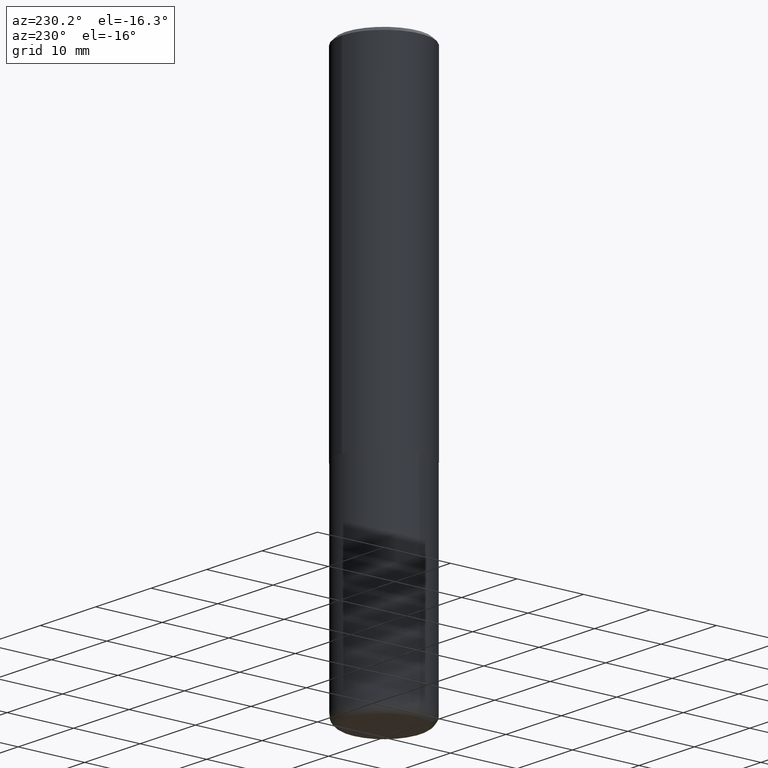
[diagram: clean part render]
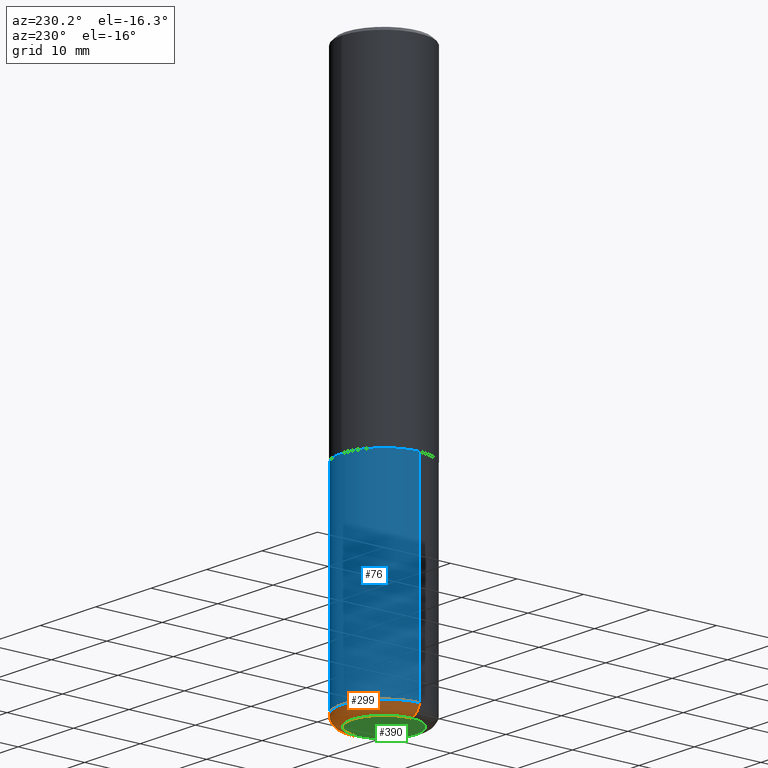
[diagram: same view with three faces highlighted in distinct colors, each labeled with its STEP entity id]
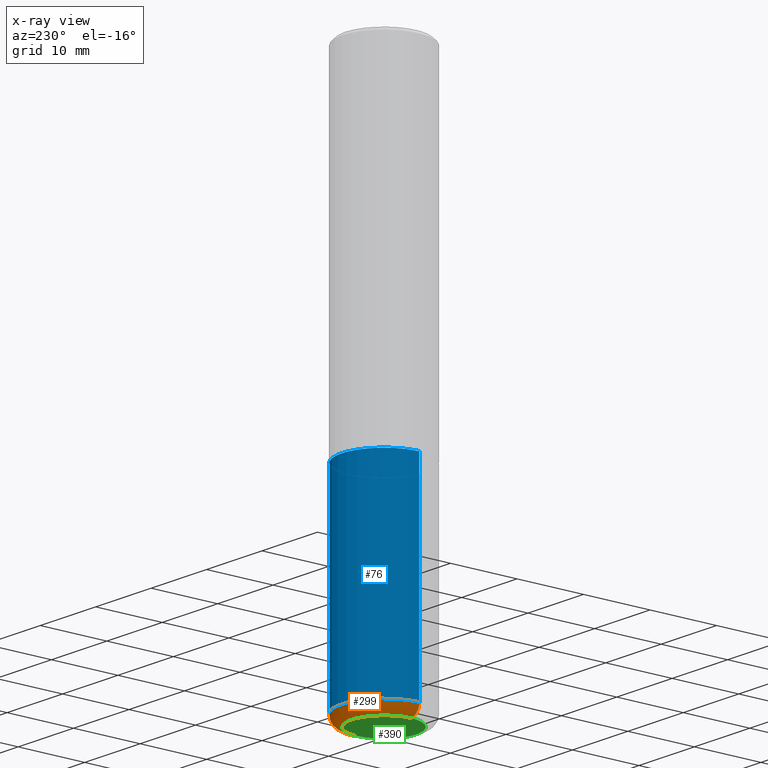
[diagram: x-ray of the same camera — body ghosted, the three highlighted faces saturated]
A machine part, auxiliary view with three faces highlighted in distinct colors.
The next image is the same camera in x-ray (body ghosted, the three faces saturated) — at least one of them is partly hidden behind the body in this view.
Their STEP definitions:

[orange] entity #299 — the highlighted toroidal blend (fillet) surface has major radius 4.826 mm and minor (blend) radius 1.524 mm.
#27 = DIRECTION ( 'NONE',  ( 1.000000000000000000, -6.982962677686261977E-15, 0.000000000000000000 ) ) ;
#34 = CIRCLE ( 'NONE', #302, 0.05999999999999994227 ) ;
#43 = CARTESIAN_POINT ( 'NONE',  ( 0.1899999999999999745, -1.246458837967002615E-14, -3.189999999999999947 ) ) ;
#52 = DIRECTION ( 'NONE',  ( 7.105427357601001859E-15, 1.000000000000000000, -3.491481338843145583E-15 ) ) ;
#56 = ORIENTED_EDGE ( 'NONE', *, *, #305, .T. ) ;
#58 = TOROIDAL_SURFACE ( 'NONE', #322, 0.1899999999999999745, 0.05999999999999995615 ) ;
#59 = CARTESIAN_POINT ( 'NONE',  ( -0.1899999999999999745, -9.787794272965444556E-15, -3.189999999999999947 ) ) ;
#63 = EDGE_LOOP ( 'NONE', ( #56, #75, #352, #356 ) ) ;
#70 = EDGE_CURVE ( 'NONE', #324, #159, #248, .T. ) ;
#75 = ORIENTED_EDGE ( 'NONE', *, *, #246, .T. ) ;
#79 = CARTESIAN_POINT ( 'NONE',  ( 7.801045491730585789E-29, -1.113782547090963453E-14, -3.189999999999999947 ) ) ;
#87 = DIRECTION ( 'NONE',  ( 1.000000000000000000, -6.982962677686265133E-15, 4.883557194083112340E-29 ) ) ;
#108 = VERTEX_POINT ( 'NONE', #334 ) ;
#120 = DIRECTION ( 'NONE',  ( -2.445468806185136597E-29, 3.491481338843145583E-15, 1.000000000000000000 ) ) ;
#124 = DIRECTION ( 'NONE',  ( -1.000000000000000000, 7.105427357600997914E-15, 0.000000000000000000 ) ) ;
#144 = DIRECTION ( 'NONE',  ( 1.000000000000000000, -6.982962677686270655E-15, 0.000000000000000000 ) ) ;
#148 = FACE_OUTER_BOUND ( 'NONE', #63, .T. ) ;
#157 = AXIS2_PLACEMENT_3D ( 'NONE', #79, #172, #144 ) ;
#159 = VERTEX_POINT ( 'NONE', #381 ) ;
#172 = DIRECTION ( 'NONE',  ( -2.445468806185136597E-29, 3.491481338843145583E-15, 1.000000000000000000 ) ) ;
#193 = DIRECTION ( 'NONE',  ( -6.982962677686266711E-15, -1.000000000000000000, 3.491481338843145583E-15 ) ) ;
#222 = AXIS2_PLACEMENT_3D ( 'NONE', #247, #385, #27 ) ;
#246 = EDGE_CURVE ( 'NONE', #108, #159, #290, .T. ) ;
#247 = CARTESIAN_POINT ( 'NONE',  ( 7.947773620101693940E-29, -1.134731435124022443E-14, -3.250000000000000000 ) ) ;
#248 = CIRCLE ( 'NONE', #157, 0.2500000000000000000 ) ;
#254 = VERTEX_POINT ( 'NONE', #317 ) ;
#279 = CARTESIAN_POINT ( 'NONE',  ( 7.801045491730585789E-29, -1.113782547090963453E-14, -3.189999999999999947 ) ) ;
#290 = CIRCLE ( 'NONE', #316, 0.05999999999999994227 ) ;
#299 = ADVANCED_FACE ( 'NONE', ( #148 ), #58, .T. ) ;
#301 = DIRECTION ( 'NONE',  ( 1.000000000000000000, -6.982962677686274599E-15, 0.000000000000000000 ) ) ;
#302 = AXIS2_PLACEMENT_3D ( 'NONE', #43, #193, #301 ) ;
#305 = EDGE_CURVE ( 'NONE', #254, #108, #391, .T. ) ;
#316 = AXIS2_PLACEMENT_3D ( 'NONE', #59, #52, #124 ) ;
#317 = CARTESIAN_POINT ( 'NONE',  ( 0.1899999999999999745, -1.267407726000061289E-14, -3.250000000000000000 ) ) ;
#322 = AXIS2_PLACEMENT_3D ( 'NONE', #279, #120, #87 ) ;
#324 = VERTEX_POINT ( 'NONE', #344 ) ;
#334 = CARTESIAN_POINT ( 'NONE',  ( -0.1899999999999999745, -9.679375892402709259E-15, -3.250000000000000000 ) ) ;
#344 = CARTESIAN_POINT ( 'NONE',  ( 0.2499999999999999722, -1.288356614033120121E-14, -3.189999999999999947 ) ) ;
#352 = ORIENTED_EDGE ( 'NONE', *, *, #70, .F. ) ;
#356 = ORIENTED_EDGE ( 'NONE', *, *, #376, .F. ) ;
#376 = EDGE_CURVE ( 'NONE', #254, #324, #34, .T. ) ;
#381 = CARTESIAN_POINT ( 'NONE',  ( -0.2499999999999999722, -9.361468631509382488E-15, -3.189999999999999947 ) ) ;
#385 = DIRECTION ( 'NONE',  ( -2.445468806185136597E-29, 3.491481338843145583E-15, 1.000000000000000000 ) ) ;
#391 = CIRCLE ( 'NONE', #222, 0.1899999999999999745 ) ;

[blue] entity #76 — the highlighted cylindrical surface (partial cylindrical patch) has radius 6.35 mm, axis along (-0, 0, 1).
#1 = ORIENTED_EDGE ( 'NONE', *, *, #415, .F. ) ;
#8 = ORIENTED_EDGE ( 'NONE', *, *, #64, .T. ) ;
#12 = ORIENTED_EDGE ( 'NONE', *, *, #70, .T. ) ;
#45 = DIRECTION ( 'NONE',  ( -2.445468806185136877E-29, 3.491481338843145188E-15, 1.000000000000000000 ) ) ;
#64 = EDGE_CURVE ( 'NONE', #159, #348, #202, .T. ) ;
#70 = EDGE_CURVE ( 'NONE', #324, #159, #248, .T. ) ;
#76 = ADVANCED_FACE ( 'NONE', ( #277 ), #409, .T. ) ;
#79 = CARTESIAN_POINT ( 'NONE',  ( 7.801045491730585789E-29, -1.113782547090963453E-14, -3.189999999999999947 ) ) ;
#86 = CARTESIAN_POINT ( 'NONE',  ( 0.2500000000000000000, -1.745740669421566678E-15, 1.219044193948983948E-29 ) ) ;
#90 = CARTESIAN_POINT ( 'NONE',  ( 0.2500000000000000000, -8.728703347107857054E-15, -2.000000000000000000 ) ) ;
#109 = CIRCLE ( 'NONE', #295, 0.2500000000000000000 ) ;
#112 = DIRECTION ( 'NONE',  ( -2.445468806185136597E-29, 3.491481338843145583E-15, 1.000000000000000000 ) ) ;
#117 = CARTESIAN_POINT ( 'NONE',  ( 0.000000000000000000, 0.000000000000000000, 0.000000000000000000 ) ) ;
#140 = VECTOR ( 'NONE', #143, 39.37007874015748143 ) ;
#143 = DIRECTION ( 'NONE',  ( -2.445468806185136877E-29, 3.491481338843145188E-15, 1.000000000000000000 ) ) ;
#144 = DIRECTION ( 'NONE',  ( 1.000000000000000000, -6.982962677686270655E-15, 0.000000000000000000 ) ) ;
#149 = EDGE_CURVE ( 'NONE', #324, #330, #273, .T. ) ;
#157 = AXIS2_PLACEMENT_3D ( 'NONE', #79, #172, #144 ) ;
#159 = VERTEX_POINT ( 'NONE', #381 ) ;
#172 = DIRECTION ( 'NONE',  ( -2.445468806185136597E-29, 3.491481338843145583E-15, 1.000000000000000000 ) ) ;
#181 = CARTESIAN_POINT ( 'NONE',  ( -0.2500000000000000000, -7.284037234897712778E-15, -2.000000000000000000 ) ) ;
#202 = LINE ( 'NONE', #333, #256 ) ;
#236 = EDGE_LOOP ( 'NONE', ( #12, #8, #1, #362 ) ) ;
#243 = DIRECTION ( 'NONE',  ( -2.445468806185136597E-29, 3.491481338843145583E-15, 1.000000000000000000 ) ) ;
#248 = CIRCLE ( 'NONE', #157, 0.2500000000000000000 ) ;
#256 = VECTOR ( 'NONE', #45, 39.37007874015748143 ) ;
#273 = LINE ( 'NONE', #86, #140 ) ;
#277 = FACE_OUTER_BOUND ( 'NONE', #236, .T. ) ;
#295 = AXIS2_PLACEMENT_3D ( 'NONE', #400, #112, #413 ) ;
#315 = AXIS2_PLACEMENT_3D ( 'NONE', #117, #243, #380 ) ;
#324 = VERTEX_POINT ( 'NONE', #344 ) ;
#330 = VERTEX_POINT ( 'NONE', #90 ) ;
#333 = CARTESIAN_POINT ( 'NONE',  ( -0.2500000000000000000, 1.776356839400250465E-15, -1.229733772563726445E-29 ) ) ;
#344 = CARTESIAN_POINT ( 'NONE',  ( 0.2499999999999999722, -1.288356614033120121E-14, -3.189999999999999947 ) ) ;
#348 = VERTEX_POINT ( 'NONE', #181 ) ;
#362 = ORIENTED_EDGE ( 'NONE', *, *, #149, .F. ) ;
#380 = DIRECTION ( 'NONE',  ( 1.000000000000000000, -6.982962677686266711E-15, 4.876176775795935793E-29 ) ) ;
#381 = CARTESIAN_POINT ( 'NONE',  ( -0.2499999999999999722, -9.361468631509382488E-15, -3.189999999999999947 ) ) ;
#400 = CARTESIAN_POINT ( 'NONE',  ( 4.890937612370273194E-29, -6.982962677686291165E-15, -2.000000000000000000 ) ) ;
#409 = CYLINDRICAL_SURFACE ( 'NONE', #315, 0.2500000000000000000 ) ;
#413 = DIRECTION ( 'NONE',  ( 1.000000000000000000, -6.982962677686266711E-15, 0.000000000000000000 ) ) ;
#415 = EDGE_CURVE ( 'NONE', #330, #348, #109, .T. ) ;

[green] entity #390 — the highlighted planar face has unit normal (0, -0, -1).
#11 = DIRECTION ( 'NONE',  ( -2.445468806185136597E-29, 3.491481338843145583E-15, 1.000000000000000000 ) ) ;
#18 = PLANE ( 'NONE',  #370 ) ;
#27 = DIRECTION ( 'NONE',  ( 1.000000000000000000, -6.982962677686261977E-15, 0.000000000000000000 ) ) ;
#28 = ORIENTED_EDGE ( 'NONE', *, *, #364, .F. ) ;
#69 = CARTESIAN_POINT ( 'NONE',  ( 7.947773620101693940E-29, -1.134731435124022443E-14, -3.250000000000000000 ) ) ;
#101 = CARTESIAN_POINT ( 'NONE',  ( 7.947773620101693940E-29, -1.134731435124022443E-14, -3.250000000000000000 ) ) ;
#108 = VERTEX_POINT ( 'NONE', #334 ) ;
#150 = EDGE_LOOP ( 'NONE', ( #392, #28 ) ) ;
#212 = AXIS2_PLACEMENT_3D ( 'NONE', #69, #11, #368 ) ;
#222 = AXIS2_PLACEMENT_3D ( 'NONE', #247, #385, #27 ) ;
#230 = DIRECTION ( 'NONE',  ( 2.438088387897960049E-29, -3.491481338843145188E-15, -1.000000000000000000 ) ) ;
#247 = CARTESIAN_POINT ( 'NONE',  ( 7.947773620101693940E-29, -1.134731435124022443E-14, -3.250000000000000000 ) ) ;
#254 = VERTEX_POINT ( 'NONE', #317 ) ;
#262 = FACE_OUTER_BOUND ( 'NONE', #150, .T. ) ;
#305 = EDGE_CURVE ( 'NONE', #254, #108, #391, .T. ) ;
#317 = CARTESIAN_POINT ( 'NONE',  ( 0.1899999999999999745, -1.267407726000061289E-14, -3.250000000000000000 ) ) ;
#325 = DIRECTION ( 'NONE',  ( -1.000000000000000000, 6.982962677686265922E-15, -4.876176775795935793E-29 ) ) ;
#334 = CARTESIAN_POINT ( 'NONE',  ( -0.1899999999999999745, -9.679375892402709259E-15, -3.250000000000000000 ) ) ;
#364 = EDGE_CURVE ( 'NONE', #108, #254, #384, .T. ) ;
#368 = DIRECTION ( 'NONE',  ( 1.000000000000000000, -6.982962677686261977E-15, 0.000000000000000000 ) ) ;
#370 = AXIS2_PLACEMENT_3D ( 'NONE', #101, #230, #325 ) ;
#384 = CIRCLE ( 'NONE', #212, 0.1899999999999999745 ) ;
#385 = DIRECTION ( 'NONE',  ( -2.445468806185136597E-29, 3.491481338843145583E-15, 1.000000000000000000 ) ) ;
#390 = ADVANCED_FACE ( 'NONE', ( #262 ), #18, .T. ) ;
#391 = CIRCLE ( 'NONE', #222, 0.1899999999999999745 ) ;
#392 = ORIENTED_EDGE ( 'NONE', *, *, #305, .F. ) ;